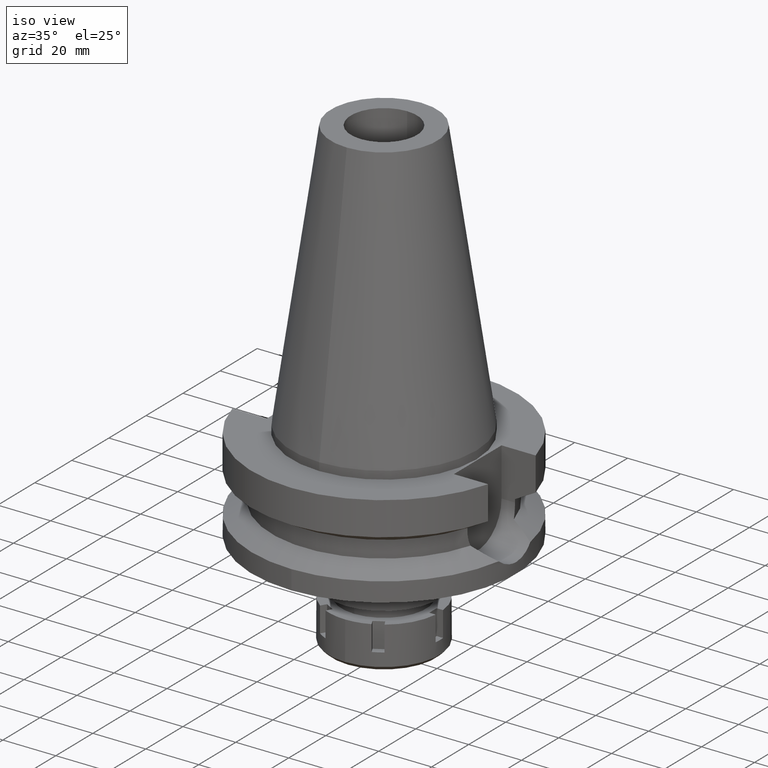
[diagram: clean part render]
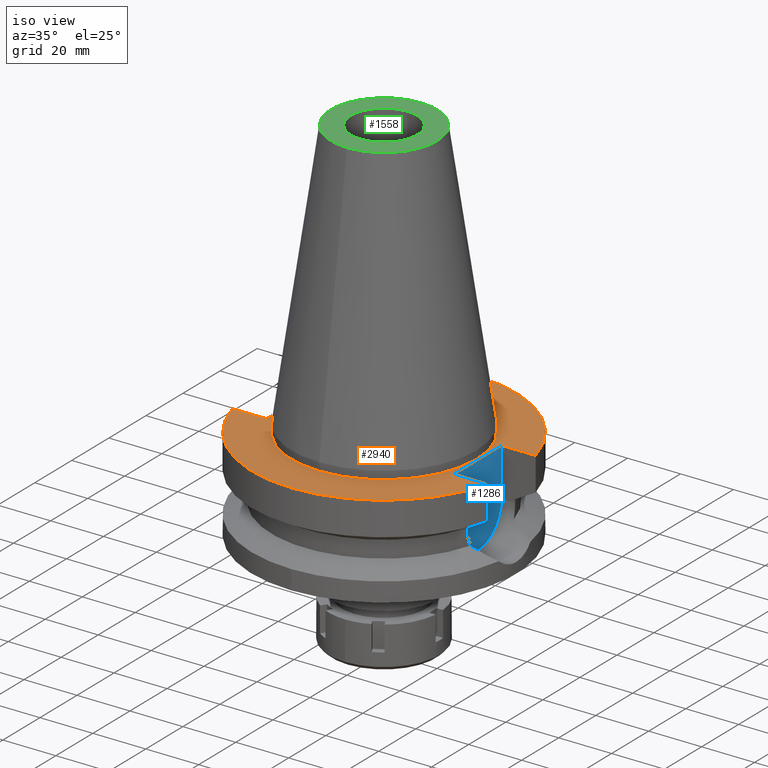
[diagram: same view with three faces highlighted in distinct colors, each labeled with its STEP entity id]
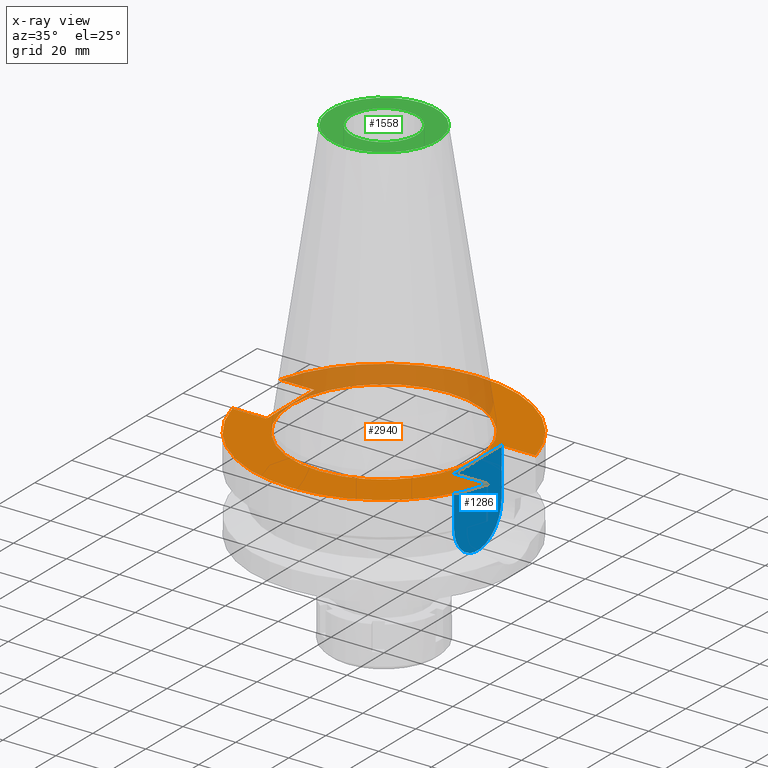
[diagram: x-ray of the same camera — body ghosted, the three highlighted faces saturated]
A machine part, iso view with three faces highlighted in distinct colors.
The next image is the same camera in x-ray (body ghosted, the three faces saturated) — at least one of them is partly hidden behind the body in this view.
Their STEP definitions:

[orange] entity #2940 — the highlighted planar face has unit normal (0, 0, -1).
#63 = CARTESIAN_POINT ( 'NONE',  ( 35.39999999999999858, -12.84999999999999964, -3.000000000000000000 ) ) ;
#132 = DIRECTION ( 'NONE',  ( 0.0000000000000000000, 0.0000000000000000000, 1.000000000000000000 ) ) ;
#133 = CARTESIAN_POINT ( 'NONE',  ( 0.0000000000000000000, 1.187907395172999884E-14, -3.000000000000000000 ) ) ;
#151 = ORIENTED_EDGE ( 'NONE', *, *, #3555, .T. ) ;
#172 = LINE ( 'NONE', #1383, #3120 ) ;
#240 = DIRECTION ( 'NONE',  ( -1.000000000000000000, 0.0000000000000000000, 0.0000000000000000000 ) ) ;
#350 = DIRECTION ( 'NONE',  ( 0.0000000000000000000, 1.000000000000000000, 0.0000000000000000000 ) ) ;
#393 = CIRCLE ( 'NONE', #1570, 50.00000000000000000 ) ;
#448 = ORIENTED_EDGE ( 'NONE', *, *, #2481, .F. ) ;
#492 = CARTESIAN_POINT ( 'NONE',  ( 0.0000000000000000000, 2.574697430526999748E-14, -3.000000000000000000 ) ) ;
#495 = EDGE_CURVE ( 'NONE', #3491, #998, #3041, .T. ) ;
#554 = CARTESIAN_POINT ( 'NONE',  ( 35.39999999999999858, 12.84999999999999964, -3.000000000000000000 ) ) ;
#679 = AXIS2_PLACEMENT_3D ( 'NONE', #133, #3494, #2127 ) ;
#732 = EDGE_LOOP ( 'NONE', ( #3256, #2285 ) ) ;
#746 = CARTESIAN_POINT ( 'NONE',  ( -35.39999999999999858, 12.84999999999999964, -3.000000000000000000 ) ) ;
#844 = VECTOR ( 'NONE', #240, 1000.000000000000000 ) ;
#857 = CARTESIAN_POINT ( 'NONE',  ( 0.0000000000000000000, 34.92499999999999716, -3.000000000000000000 ) ) ;
#864 = CARTESIAN_POINT ( 'NONE',  ( 0.0000000000000000000, 2.574697430526999748E-14, -3.000000000000000000 ) ) ;
#882 = ORIENTED_EDGE ( 'NONE', *, *, #2589, .F. ) ;
#932 = ORIENTED_EDGE ( 'NONE', *, *, #1223, .T. ) ;
#980 = CIRCLE ( 'NONE', #3360, 50.00000000000000000 ) ;
#998 = VERTEX_POINT ( 'NONE', #63 ) ;
#1018 = VERTEX_POINT ( 'NONE', #1815 ) ;
#1030 = VECTOR ( 'NONE', #2249, 1000.000000000000000 ) ;
#1033 = VECTOR ( 'NONE', #2002, 1000.000000000000000 ) ;
#1047 = DIRECTION ( 'NONE',  ( -1.000000000000000000, 0.0000000000000000000, 0.0000000000000000000 ) ) ;
#1157 = AXIS2_PLACEMENT_3D ( 'NONE', #1927, #1421, #1654 ) ;
#1175 = EDGE_CURVE ( 'NONE', #1189, #2219, #1309, .T. ) ;
#1183 = DIRECTION ( 'NONE',  ( 0.0000000000000000000, 0.0000000000000000000, -1.000000000000000000 ) ) ;
#1189 = VERTEX_POINT ( 'NONE', #746 ) ;
#1223 = EDGE_CURVE ( 'NONE', #1018, #1666, #3263, .T. ) ;
#1290 = FACE_OUTER_BOUND ( 'NONE', #2055, .T. ) ;
#1309 = LINE ( 'NONE', #3554, #844 ) ;
#1383 = CARTESIAN_POINT ( 'NONE',  ( 35.39999999999999858, -12.84999999999999964, -3.000000000000000000 ) ) ;
#1414 = ORIENTED_EDGE ( 'NONE', *, *, #495, .F. ) ;
#1421 = DIRECTION ( 'NONE',  ( 0.0000000000000000000, 0.0000000000000000000, 1.000000000000000000 ) ) ;
#1431 = ORIENTED_EDGE ( 'NONE', *, *, #1175, .F. ) ;
#1433 = VERTEX_POINT ( 'NONE', #3387 ) ;
#1463 = VECTOR ( 'NONE', #3599, 1000.000000000000000 ) ;
#1570 = AXIS2_PLACEMENT_3D ( 'NONE', #2841, #1183, #350 ) ;
#1654 = DIRECTION ( 'NONE',  ( 0.0000000000000000000, -1.000000000000000000, 0.0000000000000000000 ) ) ;
#1665 = EDGE_CURVE ( 'NONE', #2598, #3397, #3460, .T. ) ;
#1666 = VERTEX_POINT ( 'NONE', #2638 ) ;
#1734 = VECTOR ( 'NONE', #1047, 1000.000000000000000 ) ;
#1815 = CARTESIAN_POINT ( 'NONE',  ( -35.39999999999999858, -12.84999999999999964, -3.000000000000000000 ) ) ;
#1866 = ORIENTED_EDGE ( 'NONE', *, *, #3611, .F. ) ;
#1887 = CARTESIAN_POINT ( 'NONE',  ( 48.32057015392000210, -12.84999999999999964, -3.000000000000000000 ) ) ;
#1927 = CARTESIAN_POINT ( 'NONE',  ( 0.0000000000000000000, 2.574697430526999748E-14, -3.000000000000000000 ) ) ;
#1991 = DIRECTION ( 'NONE',  ( 0.0000000000000000000, 0.0000000000000000000, -1.000000000000000000 ) ) ;
#2002 = DIRECTION ( 'NONE',  ( 0.0000000000000000000, 1.000000000000000000, 0.0000000000000000000 ) ) ;
#2055 = EDGE_LOOP ( 'NONE', ( #932, #1866, #448, #1414, #151, #2391, #1431, #882 ) ) ;
#2127 = DIRECTION ( 'NONE',  ( 0.0000000000000000000, -1.000000000000000000, 0.0000000000000000000 ) ) ;
#2184 = DIRECTION ( 'NONE',  ( 0.0000000000000000000, 1.000000000000000000, 0.0000000000000000000 ) ) ;
#2219 = VERTEX_POINT ( 'NONE', #3560 ) ;
#2249 = DIRECTION ( 'NONE',  ( 0.0000000000000000000, -1.000000000000000000, 0.0000000000000000000 ) ) ;
#2255 = DIRECTION ( 'NONE',  ( 1.000000000000000000, 0.0000000000000000000, 0.0000000000000000000 ) ) ;
#2285 = ORIENTED_EDGE ( 'NONE', *, *, #2529, .F. ) ;
#2349 = CARTESIAN_POINT ( 'NONE',  ( -35.39999999999999858, -12.84999999999999964, -3.000000000000000000 ) ) ;
#2391 = ORIENTED_EDGE ( 'NONE', *, *, #2743, .F. ) ;
#2401 = FACE_BOUND ( 'NONE', #732, .T. ) ;
#2476 = LINE ( 'NONE', #2498, #1463 ) ;
#2481 = EDGE_CURVE ( 'NONE', #998, #3016, #172, .T. ) ;
#2498 = CARTESIAN_POINT ( 'NONE',  ( 35.39999999999999858, 12.84999999999999964, -3.000000000000000000 ) ) ;
#2529 = EDGE_CURVE ( 'NONE', #3397, #2598, #3238, .T. ) ;
#2589 = EDGE_CURVE ( 'NONE', #1018, #1189, #2800, .T. ) ;
#2598 = VERTEX_POINT ( 'NONE', #857 ) ;
#2638 = CARTESIAN_POINT ( 'NONE',  ( -48.32057015392000210, -12.84999999999999964, -3.000000000000000000 ) ) ;
#2698 = CARTESIAN_POINT ( 'NONE',  ( -35.39999999999999858, -12.84999999999999964, -3.000000000000000000 ) ) ;
#2743 = EDGE_CURVE ( 'NONE', #2219, #1433, #393, .T. ) ;
#2800 = LINE ( 'NONE', #2349, #1033 ) ;
#2809 = DIRECTION ( 'NONE',  ( 0.0000000000000000000, -1.000000000000000000, 0.0000000000000000000 ) ) ;
#2841 = CARTESIAN_POINT ( 'NONE',  ( 0.0000000000000000000, 2.574697430526999748E-14, -3.000000000000000000 ) ) ;
#2938 = AXIS2_PLACEMENT_3D ( 'NONE', #492, #132, #2184 ) ;
#2940 = ADVANCED_FACE ( 'NONE', ( #1290, #2401 ), #3451, .F. ) ;
#3016 = VERTEX_POINT ( 'NONE', #1887 ) ;
#3041 = LINE ( 'NONE', #554, #1030 ) ;
#3120 = VECTOR ( 'NONE', #2255, 1000.000000000000000 ) ;
#3238 = CIRCLE ( 'NONE', #1157, 34.92499999999999716 ) ;
#3256 = ORIENTED_EDGE ( 'NONE', *, *, #1665, .F. ) ;
#3263 = LINE ( 'NONE', #2698, #1734 ) ;
#3318 = CARTESIAN_POINT ( 'NONE',  ( 35.39999999999999858, 12.84999999999999964, -3.000000000000000000 ) ) ;
#3360 = AXIS2_PLACEMENT_3D ( 'NONE', #864, #1991, #2809 ) ;
#3387 = CARTESIAN_POINT ( 'NONE',  ( 48.32057015392000210, 12.84999999999999964, -3.000000000000000000 ) ) ;
#3397 = VERTEX_POINT ( 'NONE', #3486 ) ;
#3451 = PLANE ( 'NONE',  #679 ) ;
#3460 = CIRCLE ( 'NONE', #2938, 34.92499999999999716 ) ;
#3486 = CARTESIAN_POINT ( 'NONE',  ( 0.0000000000000000000, -34.92499999999999716, -3.000000000000000000 ) ) ;
#3491 = VERTEX_POINT ( 'NONE', #3318 ) ;
#3494 = DIRECTION ( 'NONE',  ( 0.0000000000000000000, 0.0000000000000000000, -1.000000000000000000 ) ) ;
#3554 = CARTESIAN_POINT ( 'NONE',  ( -35.39999999999999858, 12.84999999999999964, -3.000000000000000000 ) ) ;
#3555 = EDGE_CURVE ( 'NONE', #3491, #1433, #2476, .T. ) ;
#3560 = CARTESIAN_POINT ( 'NONE',  ( -48.32057015392000210, 12.84999999999999964, -3.000000000000000000 ) ) ;
#3599 = DIRECTION ( 'NONE',  ( 1.000000000000000000, 0.0000000000000000000, 0.0000000000000000000 ) ) ;
#3611 = EDGE_CURVE ( 'NONE', #3016, #1666, #980, .T. ) ;

[blue] entity #1286 — the highlighted planar face has unit normal (1, 0, 0).
#43 = DIRECTION ( 'NONE',  ( -1.000000000000000000, 0.0000000000000000000, 0.0000000000000000000 ) ) ;
#63 = CARTESIAN_POINT ( 'NONE',  ( 35.39999999999999858, -12.84999999999999964, -3.000000000000000000 ) ) ;
#87 = VECTOR ( 'NONE', #3326, 1000.000000000000000 ) ;
#305 = PLANE ( 'NONE',  #3286 ) ;
#325 = FACE_OUTER_BOUND ( 'NONE', #339, .T. ) ;
#330 = DIRECTION ( 'NONE',  ( 0.0000000000000000000, 1.000000000000000000, 0.0000000000000000000 ) ) ;
#339 = EDGE_LOOP ( 'NONE', ( #1464, #1651, #2745, #946 ) ) ;
#408 = CARTESIAN_POINT ( 'NONE',  ( 35.39999999999999858, 12.84999999999999964, -3.000000000000000000 ) ) ;
#495 = EDGE_CURVE ( 'NONE', #3491, #998, #3041, .T. ) ;
#554 = CARTESIAN_POINT ( 'NONE',  ( 35.39999999999999858, 12.84999999999999964, -3.000000000000000000 ) ) ;
#644 = LINE ( 'NONE', #408, #1210 ) ;
#946 = ORIENTED_EDGE ( 'NONE', *, *, #495, .T. ) ;
#998 = VERTEX_POINT ( 'NONE', #63 ) ;
#1019 = CARTESIAN_POINT ( 'NONE',  ( 35.39999999999999858, 0.0000000000000000000, -21.14999999999999858 ) ) ;
#1030 = VECTOR ( 'NONE', #2249, 1000.000000000000000 ) ;
#1100 = EDGE_CURVE ( 'NONE', #3491, #3140, #644, .T. ) ;
#1117 = DIRECTION ( 'NONE',  ( 1.000000000000000000, 0.0000000000000000000, 0.0000000000000000000 ) ) ;
#1180 = CARTESIAN_POINT ( 'NONE',  ( 35.39999999999999858, 12.84999999999999964, -21.14999999999999858 ) ) ;
#1210 = VECTOR ( 'NONE', #2335, 1000.000000000000000 ) ;
#1286 = ADVANCED_FACE ( 'NONE', ( #325 ), #305, .T. ) ;
#1302 = VERTEX_POINT ( 'NONE', #1707 ) ;
#1405 = LINE ( 'NONE', #2508, #87 ) ;
#1419 = CARTESIAN_POINT ( 'NONE',  ( 35.39999999999999858, 0.0000000000000000000, 0.0000000000000000000 ) ) ;
#1464 = ORIENTED_EDGE ( 'NONE', *, *, #2570, .F. ) ;
#1651 = ORIENTED_EDGE ( 'NONE', *, *, #1863, .F. ) ;
#1707 = CARTESIAN_POINT ( 'NONE',  ( 35.39999999999999858, -12.84999999999999964, -21.14999999999999858 ) ) ;
#1863 = EDGE_CURVE ( 'NONE', #3140, #1302, #2264, .T. ) ;
#2249 = DIRECTION ( 'NONE',  ( 0.0000000000000000000, -1.000000000000000000, 0.0000000000000000000 ) ) ;
#2264 = CIRCLE ( 'NONE', #2658, 12.84999999999999964 ) ;
#2335 = DIRECTION ( 'NONE',  ( 0.0000000000000000000, 0.0000000000000000000, -1.000000000000000000 ) ) ;
#2508 = CARTESIAN_POINT ( 'NONE',  ( 35.39999999999999858, -12.84999999999999964, -21.14999999999999858 ) ) ;
#2570 = EDGE_CURVE ( 'NONE', #1302, #998, #1405, .T. ) ;
#2658 = AXIS2_PLACEMENT_3D ( 'NONE', #1019, #43, #330 ) ;
#2745 = ORIENTED_EDGE ( 'NONE', *, *, #1100, .F. ) ;
#2785 = DIRECTION ( 'NONE',  ( 0.0000000000000000000, 1.000000000000000000, 0.0000000000000000000 ) ) ;
#3041 = LINE ( 'NONE', #554, #1030 ) ;
#3140 = VERTEX_POINT ( 'NONE', #1180 ) ;
#3286 = AXIS2_PLACEMENT_3D ( 'NONE', #1419, #1117, #2785 ) ;
#3318 = CARTESIAN_POINT ( 'NONE',  ( 35.39999999999999858, 12.84999999999999964, -3.000000000000000000 ) ) ;
#3326 = DIRECTION ( 'NONE',  ( 0.0000000000000000000, 0.0000000000000000000, 1.000000000000000000 ) ) ;
#3491 = VERTEX_POINT ( 'NONE', #3318 ) ;

[green] entity #1558 — the highlighted planar face has unit normal (0, 0, -1).
#127 = VERTEX_POINT ( 'NONE', #2607 ) ;
#214 = VERTEX_POINT ( 'NONE', #2361 ) ;
#349 = DIRECTION ( 'NONE',  ( 0.0000000000000000000, -1.000000000000000000, 0.0000000000000000000 ) ) ;
#382 = DIRECTION ( 'NONE',  ( 0.0000000000000000000, -1.000000000000000000, 0.0000000000000000000 ) ) ;
#412 = EDGE_CURVE ( 'NONE', #127, #488, #2078, .T. ) ;
#488 = VERTEX_POINT ( 'NONE', #3395 ) ;
#490 = ORIENTED_EDGE ( 'NONE', *, *, #1453, .F. ) ;
#661 = ORIENTED_EDGE ( 'NONE', *, *, #3566, .F. ) ;
#910 = ORIENTED_EDGE ( 'NONE', *, *, #1684, .F. ) ;
#915 = DIRECTION ( 'NONE',  ( 0.0000000000000000000, 0.0000000000000000000, -1.000000000000000000 ) ) ;
#935 = FACE_OUTER_BOUND ( 'NONE', #2166, .T. ) ;
#1205 = ORIENTED_EDGE ( 'NONE', *, *, #412, .F. ) ;
#1250 = VERTEX_POINT ( 'NONE', #3222 ) ;
#1343 = CIRCLE ( 'NONE', #2098, 12.50000000000000000 ) ;
#1412 = CARTESIAN_POINT ( 'NONE',  ( 0.0000000000000000000, 2.574697430526999748E-14, 101.7999999999999972 ) ) ;
#1453 = EDGE_CURVE ( 'NONE', #1250, #214, #3581, .T. ) ;
#1471 = CARTESIAN_POINT ( 'NONE',  ( 0.0000000000000000000, 2.574697430526999748E-14, 101.7999999999999972 ) ) ;
#1479 = PLANE ( 'NONE',  #3170 ) ;
#1558 = ADVANCED_FACE ( 'NONE', ( #935, #2329 ), #1479, .F. ) ;
#1684 = EDGE_CURVE ( 'NONE', #214, #1250, #2089, .T. ) ;
#1756 = DIRECTION ( 'NONE',  ( 0.0000000000000000000, 1.000000000000000000, 0.0000000000000000000 ) ) ;
#1850 = DIRECTION ( 'NONE',  ( 0.0000000000000000000, 0.0000000000000000000, -1.000000000000000000 ) ) ;
#1901 = CARTESIAN_POINT ( 'NONE',  ( 0.0000000000000000000, 1.847992019912999597E-14, 101.7999999999999972 ) ) ;
#1968 = DIRECTION ( 'NONE',  ( 0.0000000000000000000, -1.000000000000000000, 0.0000000000000000000 ) ) ;
#2078 = CIRCLE ( 'NONE', #2437, 12.50000000000000000 ) ;
#2089 = CIRCLE ( 'NONE', #3583, 20.07942971896000017 ) ;
#2098 = AXIS2_PLACEMENT_3D ( 'NONE', #1412, #3084, #1968 ) ;
#2146 = DIRECTION ( 'NONE',  ( 0.0000000000000000000, 1.000000000000000000, 0.0000000000000000000 ) ) ;
#2166 = EDGE_LOOP ( 'NONE', ( #910, #490 ) ) ;
#2234 = DIRECTION ( 'NONE',  ( 0.0000000000000000000, 0.0000000000000000000, 1.000000000000000000 ) ) ;
#2329 = FACE_BOUND ( 'NONE', #3446, .T. ) ;
#2361 = CARTESIAN_POINT ( 'NONE',  ( 0.0000000000000000000, 20.07942971896000017, 101.7999999999999972 ) ) ;
#2437 = AXIS2_PLACEMENT_3D ( 'NONE', #1471, #2234, #1756 ) ;
#2539 = AXIS2_PLACEMENT_3D ( 'NONE', #3109, #915, #382 ) ;
#2591 = CARTESIAN_POINT ( 'NONE',  ( 0.0000000000000000000, 2.471337240678999545E-14, 101.7999999999999972 ) ) ;
#2607 = CARTESIAN_POINT ( 'NONE',  ( 0.0000000000000000000, 12.50000000000000000, 101.7999999999999972 ) ) ;
#3084 = DIRECTION ( 'NONE',  ( 0.0000000000000000000, 0.0000000000000000000, 1.000000000000000000 ) ) ;
#3109 = CARTESIAN_POINT ( 'NONE',  ( 0.0000000000000000000, 1.847992019912999597E-14, 101.7999999999999972 ) ) ;
#3170 = AXIS2_PLACEMENT_3D ( 'NONE', #2591, #3438, #349 ) ;
#3222 = CARTESIAN_POINT ( 'NONE',  ( 0.0000000000000000000, -20.07942971896000017, 101.7999999999999972 ) ) ;
#3395 = CARTESIAN_POINT ( 'NONE',  ( 0.0000000000000000000, -12.50000000000000000, 101.7999999999999972 ) ) ;
#3438 = DIRECTION ( 'NONE',  ( 0.0000000000000000000, 0.0000000000000000000, -1.000000000000000000 ) ) ;
#3446 = EDGE_LOOP ( 'NONE', ( #1205, #661 ) ) ;
#3566 = EDGE_CURVE ( 'NONE', #488, #127, #1343, .T. ) ;
#3581 = CIRCLE ( 'NONE', #2539, 20.07942971896000017 ) ;
#3583 = AXIS2_PLACEMENT_3D ( 'NONE', #1901, #1850, #2146 ) ;